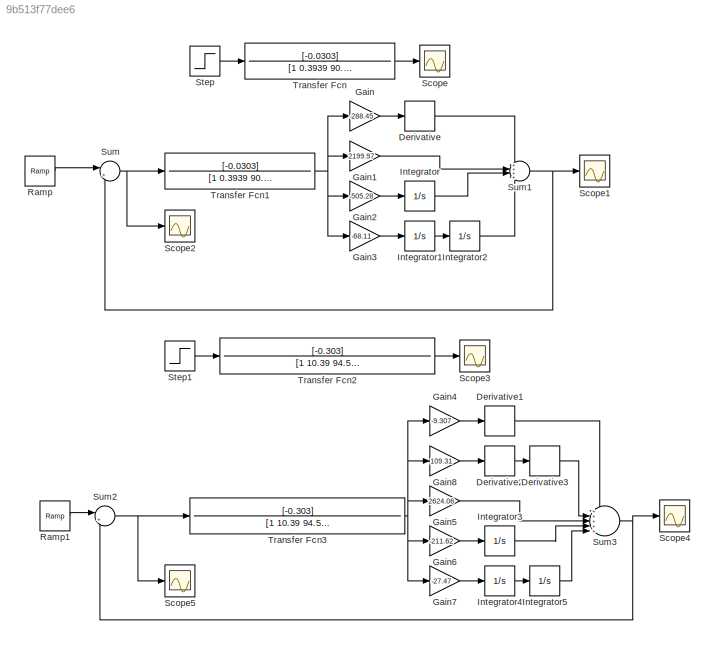
MODEL slx_9b513f77dee6
KIND model
CONFIG AbsTol = auto
CONFIG EnableMultiTasking = off
CONFIG FixedStep = auto
CONFIG MaxStep = auto
CONFIG MinStep = auto
CONFIG RelTol = 1e-3
CONFIG SampleTimeConstraint = Unconstrained
CONFIG SolverName = VariableStepAuto
CONFIG StartTime = 0.0
CONFIG StopTime = 50
BLOCK [Derivative] Derivative
BLOCK [Derivative] Derivative1
BLOCK [Derivative] Derivative2
BLOCK [Derivative] Derivative3
BLOCK [Gain] Gain
  Gain = -288.45
BLOCK [Gain] Gain1
  Gain = 2199.97
BLOCK [Gain] Gain2
  Gain = -505.28
BLOCK [Gain] Gain3
  Gain = -68.11
BLOCK [Gain] Gain4
  Gain = -9.307
BLOCK [Gain] Gain5
  Gain = 2624.06
BLOCK [Gain] Gain6
  Gain = -211.62
BLOCK [Gain] Gain7
  Gain = -27.47
BLOCK [Gain] Gain8
  Gain = 109.31
BLOCK [Integrator] Integrator
BLOCK [Integrator] Integrator1
BLOCK [Integrator] Integrator2
BLOCK [Integrator] Integrator3
BLOCK [Integrator] Integrator4
BLOCK [Integrator] Integrator5
BLOCK [Reference] Ramp  REF=simulink/Sources/Ramp
  SourceBlock = simulink/Sources/Ramp
  SourceType = Ramp
BLOCK [Reference] Ramp1  REF=simulink/Sources/Ramp
  SourceBlock = simulink/Sources/Ramp
  SourceType = Ramp
BLOCK [Scope] Scope
  Floating = off
  NumInputPorts = 1
  ScopeSpecificationString = Simulink.scopes.TimeScopeBlockCfg('CurrentConfiguration', extmgr.ConfigurationSet(extmgr.Configuration('Core','General UI',true),extmgr.Configuration('Core','Source UI',true),extmgr.Configuration('Sources','WiredSimulink',true),extmgr.Configuration('Visuals','Time Domain',true,'SerializedDisplays',{struct('MinYLimReal','-0.00073','MaxYLimReal','0.00008','YLabelReal','','MinYLimMag','0.00000','MaxY...<+1447ch>
BLOCK [Scope] Scope1
  Floating = off
  NumInputPorts = 1
  ScopeSpecificationString = Simulink.scopes.TimeScopeBlockCfg('CurrentConfiguration', extmgr.ConfigurationSet(extmgr.Configuration('Core','General UI',true),extmgr.Configuration('Core','Source UI',true),extmgr.Configuration('Sources','WiredSimulink',true,'DataLoggingVariableName','ScopeData1'),extmgr.Configuration('Visuals','Time Domain',true,'SerializedDisplays',{struct('MinYLimReal','-8.76789','MaxYLimReal','56.52846','YLa...<+1482ch>
BLOCK [Scope] Scope2
  Floating = off
  NumInputPorts = 1
  ScopeSpecificationString = Simulink.scopes.TimeScopeBlockCfg('CurrentConfiguration', extmgr.ConfigurationSet(extmgr.Configuration('Core','General UI',true),extmgr.Configuration('Core','Source UI',true),extmgr.Configuration('Sources','WiredSimulink',true,'DataLoggingVariableName','ScopeData2'),extmgr.Configuration('Visuals','Time Domain',true,'SerializedDisplays',{struct('MinYLimReal','-0.61183','MaxYLimReal','5.50645','YLab...<+1477ch>
BLOCK [Scope] Scope3
  Floating = off
  NumInputPorts = 1
  ScopeSpecificationString = Simulink.scopes.TimeScopeBlockCfg('CurrentConfiguration', extmgr.ConfigurationSet(extmgr.Configuration('Core','General UI',true),extmgr.Configuration('Core','Source UI',true),extmgr.Configuration('Sources','WiredSimulink',true,'DataLoggingVariableName','ScopeData1'),extmgr.Configuration('Visuals','Time Domain',true,'SerializedDisplays',{struct('MinYLimReal','-0.00063','MaxYLimReal','0.00007','YLab...<+1487ch>
BLOCK [Scope] Scope4
  Floating = off
  NumInputPorts = 1
  ScopeSpecificationString = Simulink.scopes.TimeScopeBlockCfg('CurrentConfiguration', extmgr.ConfigurationSet(extmgr.Configuration('Core','General UI',true),extmgr.Configuration('Core','Source UI',true),extmgr.Configuration('Sources','WiredSimulink',true,'DataLoggingVariableName','ScopeData2'),extmgr.Configuration('Visuals','Time Domain',true,'SerializedDisplays',{struct('MinYLimReal','-79832105281258788180025624088524540137...<+3930ch>
BLOCK [Scope] Scope5
  Floating = off
  NumInputPorts = 1
  ScopeSpecificationString = Simulink.scopes.TimeScopeBlockCfg('CurrentConfiguration', extmgr.ConfigurationSet(extmgr.Configuration('Core','General UI',true),extmgr.Configuration('Core','Source UI',true),extmgr.Configuration('Sources','WiredSimulink',true,'DataLoggingVariableName','ScopeData3'),extmgr.Configuration('Visuals','Time Domain',true,'SerializedDisplays',{struct('MinYLimReal','-88702339201398625813357505449474327147...<+3928ch>
BLOCK [Step] Step
  SampleTime = 0
  Time = 0
BLOCK [Step] Step1
  SampleTime = 0
  Time = 0
BLOCK [Sum] Sum
  Inputs = |+-
BLOCK [Sum] Sum1
  Inputs = ++++
BLOCK [Sum] Sum2
  Inputs = |+-
BLOCK [Sum] Sum3
  Inputs = +++++
BLOCK [TransferFcn] Transfer Fcn
  Denominator = [1 0.3939 90.9091]
  Numerator = [-0.0303]
BLOCK [TransferFcn] Transfer Fcn1
  Denominator = [1 0.3939 90.9091]
  Numerator = [-0.0303]
BLOCK [TransferFcn] Transfer Fcn2
  Denominator = [1 10.39 94.58 909.091]
  Numerator = [-0.303]
BLOCK [TransferFcn] Transfer Fcn3
  Denominator = [1 10.39 94.58 909.091]
  Numerator = [-0.303]
LINE Derivative1:1 -> Sum3:1
LINE Derivative2:1 -> Derivative3:1
LINE Derivative3:1 -> Sum3:2
LINE Derivative:1 -> Sum1:1
LINE Gain1:1 -> Sum1:2
LINE Gain2:1 -> Integrator:1
LINE Gain3:1 -> Integrator1:1
LINE Gain4:1 -> Derivative1:1
LINE Gain5:1 -> Sum3:3
LINE Gain6:1 -> Integrator3:1
LINE Gain7:1 -> Integrator4:1
LINE Gain8:1 -> Derivative2:1
LINE Gain:1 -> Derivative:1
LINE Integrator1:1 -> Integrator2:1
LINE Integrator2:1 -> Sum1:4
LINE Integrator3:1 -> Sum3:4
LINE Integrator4:1 -> Integrator5:1
LINE Integrator5:1 -> Sum3:5
LINE Integrator:1 -> Sum1:3
LINE Ramp1:1 -> Sum2:1
LINE Ramp:1 -> Sum:1
LINE Step1:1 -> Transfer Fcn2:1
LINE Step:1 -> Transfer Fcn:1
NET Sum1:1 -> Scope1:1, Sum:2
NET Sum2:1 -> Scope5:1, Transfer Fcn3:1
NET Sum3:1 -> Scope4:1, Sum2:2
NET Sum:1 -> Scope2:1, Transfer Fcn1:1
NET Transfer Fcn1:1 -> Gain1:1, Gain2:1, Gain3:1, Gain:1
LINE Transfer Fcn2:1 -> Scope3:1
NET Transfer Fcn3:1 -> Gain4:1, Gain5:1, Gain6:1, Gain7:1, Gain8:1
LINE Transfer Fcn:1 -> Scope:1
note: NET lines group one-source signal fan-out (src -> all destinations, sorted); 1:1 wires keep LINE
